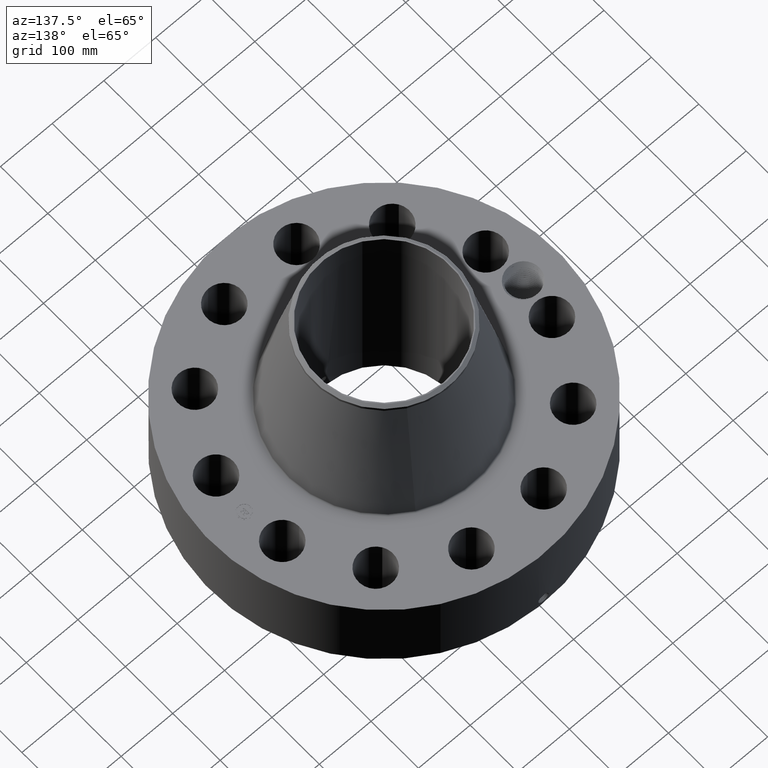
[diagram: clean part render]
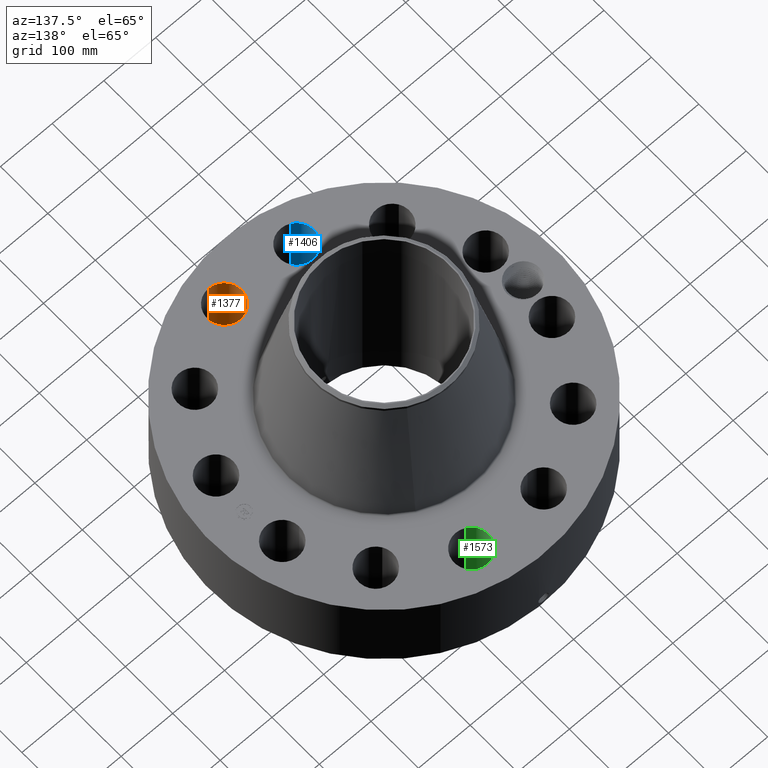
[diagram: same view with three faces highlighted in distinct colors, each labeled with its STEP entity id]
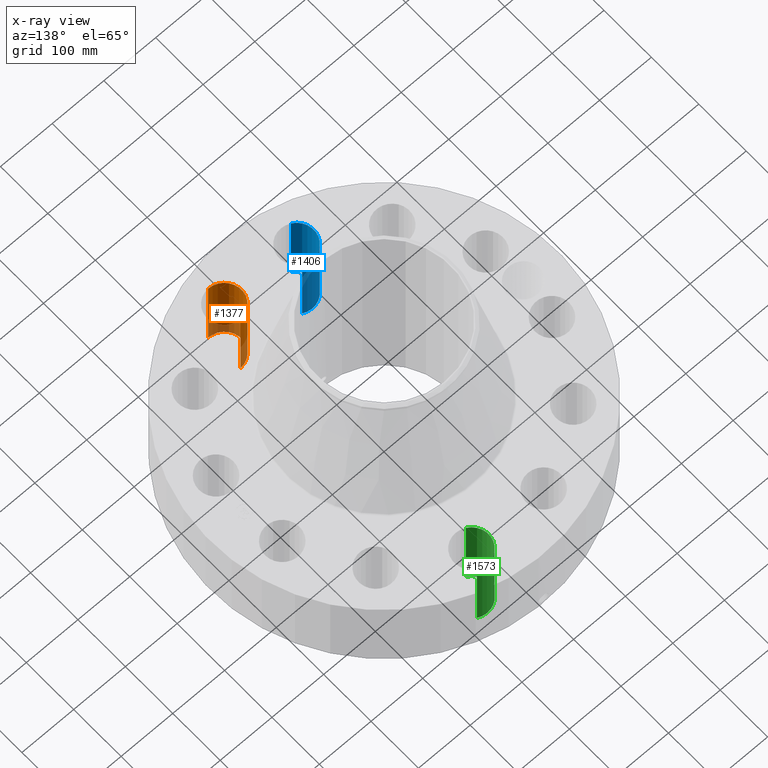
[diagram: x-ray of the same camera — body ghosted, the three highlighted faces saturated]
A machine part, auxiliary view with three faces highlighted in distinct colors.
The next image is the same camera in x-ray (body ghosted, the three faces saturated) — at least one of them is partly hidden behind the body in this view.
Their STEP definitions:

[orange] entity #1377 — the highlighted cylindrical surface (edge-blend (fillet) strip) has radius 33.274 mm, axis along (0, -0, -1).
#302=AXIS2_PLACEMENT_3D('Circle Axis2P3D',#300,#301,$) ;
#697=AXIS2_PLACEMENT_3D('Circle Axis2P3D',#695,#696,$) ;
#1352=AXIS2_PLACEMENT_3D('Cylinder Axis2P3D',#1349,#1350,#1351) ;
#295=CARTESIAN_POINT('Vertex',(2.71904082749,-8.95332665838,0.250000000001)) ;
#297=CARTESIAN_POINT('Vertex',(2.78086388096,-11.5725971503,0.250000000001)) ;
#300=CARTESIAN_POINT('Axis2P3D Location',(2.74995235423,-10.2629619044,0.250000000001)) ;
#695=CARTESIAN_POINT('Axis2P3D Location',(2.74995235423,-10.2629619044,6.75000000003)) ;
#699=CARTESIAN_POINT('Vertex',(2.78086388096,-11.5725971503,6.75000000003)) ;
#701=CARTESIAN_POINT('Vertex',(2.71904082749,-8.95332665838,6.75000000003)) ;
#1349=CARTESIAN_POINT('Axis2P3D Location',(2.74995235423,-10.2629619044,6.74606299215)) ;
#1354=CARTESIAN_POINT('Line Origine',(2.71904082749,-8.95332665838,3.50000000001)) ;
#1359=CARTESIAN_POINT('Line Origine',(2.78086388096,-11.5725971503,3.50000000001)) ;
#301=DIRECTION('Axis2P3D Direction',(0.,0.,-0.0393700787402)) ;
#696=DIRECTION('Axis2P3D Direction',(0.,0.,-0.0393700787402)) ;
#1350=DIRECTION('Axis2P3D Direction',(0.,-0.,-0.0393700787402)) ;
#1351=DIRECTION('Axis2P3D XDirection',(0.000928999420902,-0.039359116607,0.)) ;
#1355=DIRECTION('Vector Direction',(0.,0.,-0.0393700787402)) ;
#1360=DIRECTION('Vector Direction',(0.,0.,-0.0393700787402)) ;
#1356=VECTOR('Line Direction',#1355,0.0393700787402) ;
#1361=VECTOR('Line Direction',#1360,0.0393700787402) ;
#1372=ORIENTED_EDGE('',*,*,#1363,.F.) ;
#1373=ORIENTED_EDGE('',*,*,#304,.T.) ;
#1374=ORIENTED_EDGE('',*,*,#1358,.T.) ;
#1375=ORIENTED_EDGE('',*,*,#703,.F.) ;
#1377=ADVANCED_FACE('PartBody',(#1376),#1353,.F.) ;
#303=CIRCLE('generated circle',#302,1.31000000001) ;
#698=CIRCLE('generated circle',#697,1.31000000001) ;
#1353=CYLINDRICAL_SURFACE('generated cylinder',#1352,1.31000000001) ;
#304=EDGE_CURVE('',#298,#296,#303,.T.) ;
#703=EDGE_CURVE('',#700,#702,#698,.T.) ;
#1358=EDGE_CURVE('',#296,#702,#1357,.F.) ;
#1363=EDGE_CURVE('',#298,#700,#1362,.F.) ;
#1371=EDGE_LOOP('',(#1372,#1373,#1374,#1375)) ;
#1376=FACE_OUTER_BOUND('',#1371,.T.) ;
#1357=LINE('Line',#1354,#1356) ;
#1362=LINE('Line',#1359,#1361) ;
#296=VERTEX_POINT('',#295) ;
#298=VERTEX_POINT('',#297) ;
#700=VERTEX_POINT('',#699) ;
#702=VERTEX_POINT('',#701) ;

[blue] entity #1406 — the highlighted cylindrical surface (edge-blend (fillet) strip) has radius 33.274 mm, axis along (0, -0, -1).
#320=AXIS2_PLACEMENT_3D('Circle Axis2P3D',#318,#319,$) ;
#715=AXIS2_PLACEMENT_3D('Circle Axis2P3D',#713,#714,$) ;
#1381=AXIS2_PLACEMENT_3D('Cylinder Axis2P3D',#1378,#1379,#1380) ;
#313=CARTESIAN_POINT('Vertex',(-2.12190489865,-9.11332874828,0.250000000001)) ;
#315=CARTESIAN_POINT('Vertex',(-3.3779998098,-11.4125950604,0.250000000001)) ;
#318=CARTESIAN_POINT('Axis2P3D Location',(-2.74995235423,-10.2629619044,0.250000000001)) ;
#713=CARTESIAN_POINT('Axis2P3D Location',(-2.74995235423,-10.2629619044,6.75000000003)) ;
#717=CARTESIAN_POINT('Vertex',(-3.3779998098,-11.4125950604,6.75000000003)) ;
#719=CARTESIAN_POINT('Vertex',(-2.12190489865,-9.11332874828,6.75000000003)) ;
#1378=CARTESIAN_POINT('Axis2P3D Location',(-2.74995235423,-10.2629619044,6.74606299215)) ;
#1383=CARTESIAN_POINT('Line Origine',(-2.12190489865,-9.11332874828,3.50000000001)) ;
#1388=CARTESIAN_POINT('Line Origine',(-3.3779998098,-11.4125950604,3.50000000001)) ;
#319=DIRECTION('Axis2P3D Direction',(0.,0.,-0.0393700787402)) ;
#714=DIRECTION('Axis2P3D Direction',(0.,0.,-0.0393700787402)) ;
#1379=DIRECTION('Axis2P3D Direction',(0.,-0.,-0.0393700787402)) ;
#1380=DIRECTION('Axis2P3D XDirection',(-0.0188750212049,-0.0345504945626,0.)) ;
#1384=DIRECTION('Vector Direction',(0.,0.,-0.0393700787402)) ;
#1389=DIRECTION('Vector Direction',(0.,0.,-0.0393700787402)) ;
#1385=VECTOR('Line Direction',#1384,0.0393700787402) ;
#1390=VECTOR('Line Direction',#1389,0.0393700787402) ;
#1401=ORIENTED_EDGE('',*,*,#1392,.F.) ;
#1402=ORIENTED_EDGE('',*,*,#322,.T.) ;
#1403=ORIENTED_EDGE('',*,*,#1387,.T.) ;
#1404=ORIENTED_EDGE('',*,*,#721,.F.) ;
#1406=ADVANCED_FACE('PartBody',(#1405),#1382,.F.) ;
#321=CIRCLE('generated circle',#320,1.31000000001) ;
#716=CIRCLE('generated circle',#715,1.31000000001) ;
#1382=CYLINDRICAL_SURFACE('generated cylinder',#1381,1.31000000001) ;
#322=EDGE_CURVE('',#316,#314,#321,.T.) ;
#721=EDGE_CURVE('',#718,#720,#716,.T.) ;
#1387=EDGE_CURVE('',#314,#720,#1386,.F.) ;
#1392=EDGE_CURVE('',#316,#718,#1391,.F.) ;
#1400=EDGE_LOOP('',(#1401,#1402,#1403,#1404)) ;
#1405=FACE_OUTER_BOUND('',#1400,.T.) ;
#1386=LINE('Line',#1383,#1385) ;
#1391=LINE('Line',#1388,#1390) ;
#314=VERTEX_POINT('',#313) ;
#316=VERTEX_POINT('',#315) ;
#718=VERTEX_POINT('',#717) ;
#720=VERTEX_POINT('',#719) ;

[green] entity #1573 — the highlighted cylindrical surface (edge-blend (fillet) strip) has radius 33.274 mm, axis along (0, 0, -1).
#419=AXIS2_PLACEMENT_3D('Circle Axis2P3D',#417,#418,$) ;
#832=AXIS2_PLACEMENT_3D('Circle Axis2P3D',#830,#831,$) ;
#1555=AXIS2_PLACEMENT_3D('Cylinder Axis2P3D',#1552,#1553,#1554) ;
#417=CARTESIAN_POINT('Axis2P3D Location',(2.74995235423,10.2629619044,0.250000000001)) ;
#421=CARTESIAN_POINT('Vertex',(2.12190489865,9.11332874828,0.250000000001)) ;
#423=CARTESIAN_POINT('Vertex',(3.3779998098,11.4125950604,0.250000000001)) ;
#825=CARTESIAN_POINT('Vertex',(3.3779998098,11.4125950604,6.75000000003)) ;
#827=CARTESIAN_POINT('Vertex',(2.12190489865,9.11332874828,6.75000000003)) ;
#830=CARTESIAN_POINT('Axis2P3D Location',(2.74995235423,10.2629619044,6.75000000003)) ;
#1552=CARTESIAN_POINT('Axis2P3D Location',(2.74995235423,10.2629619044,6.74606299215)) ;
#1557=CARTESIAN_POINT('Line Origine',(2.12190489865,9.11332874828,3.50000000001)) ;
#1562=CARTESIAN_POINT('Line Origine',(3.3779998098,11.4125950604,3.50000000001)) ;
#418=DIRECTION('Axis2P3D Direction',(0.,0.,-0.0393700787402)) ;
#831=DIRECTION('Axis2P3D Direction',(0.,0.,-0.0393700787402)) ;
#1553=DIRECTION('Axis2P3D Direction',(0.,0.,-0.0393700787402)) ;
#1554=DIRECTION('Axis2P3D XDirection',(0.0188750212049,0.0345504945626,0.)) ;
#1558=DIRECTION('Vector Direction',(0.,0.,-0.0393700787402)) ;
#1563=DIRECTION('Vector Direction',(0.,0.,-0.0393700787402)) ;
#1559=VECTOR('Line Direction',#1558,0.0393700787402) ;
#1564=VECTOR('Line Direction',#1563,0.0393700787402) ;
#1568=ORIENTED_EDGE('',*,*,#1561,.F.) ;
#1569=ORIENTED_EDGE('',*,*,#425,.T.) ;
#1570=ORIENTED_EDGE('',*,*,#1566,.T.) ;
#1571=ORIENTED_EDGE('',*,*,#834,.F.) ;
#1573=ADVANCED_FACE('PartBody',(#1572),#1556,.F.) ;
#420=CIRCLE('generated circle',#419,1.31000000001) ;
#833=CIRCLE('generated circle',#832,1.31000000001) ;
#1556=CYLINDRICAL_SURFACE('generated cylinder',#1555,1.31000000001) ;
#425=EDGE_CURVE('',#422,#424,#420,.T.) ;
#834=EDGE_CURVE('',#828,#826,#833,.T.) ;
#1561=EDGE_CURVE('',#422,#828,#1560,.F.) ;
#1566=EDGE_CURVE('',#424,#826,#1565,.F.) ;
#1567=EDGE_LOOP('',(#1568,#1569,#1570,#1571)) ;
#1572=FACE_OUTER_BOUND('',#1567,.T.) ;
#1560=LINE('Line',#1557,#1559) ;
#1565=LINE('Line',#1562,#1564) ;
#422=VERTEX_POINT('',#421) ;
#424=VERTEX_POINT('',#423) ;
#826=VERTEX_POINT('',#825) ;
#828=VERTEX_POINT('',#827) ;